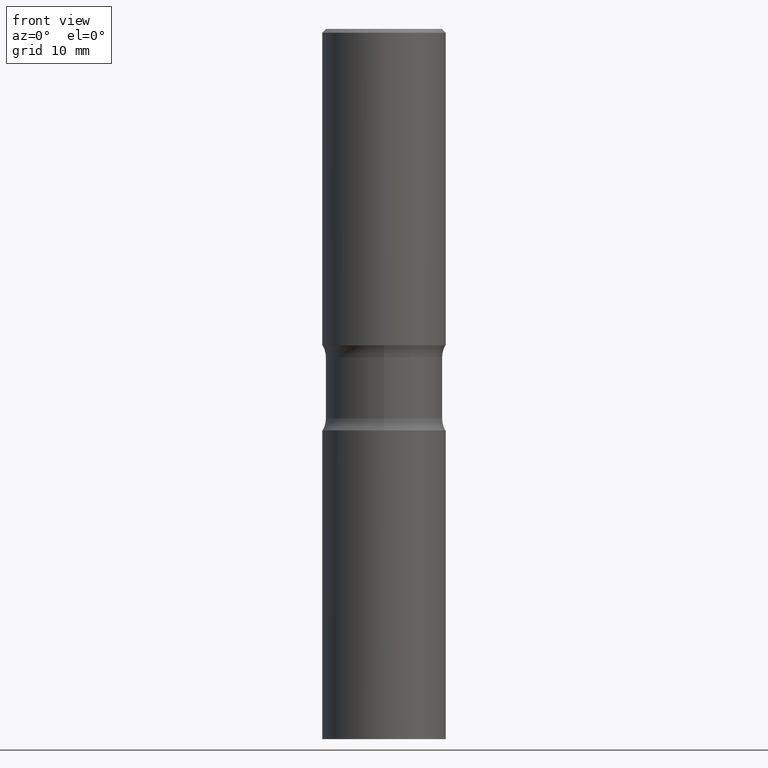
[diagram: clean part render]
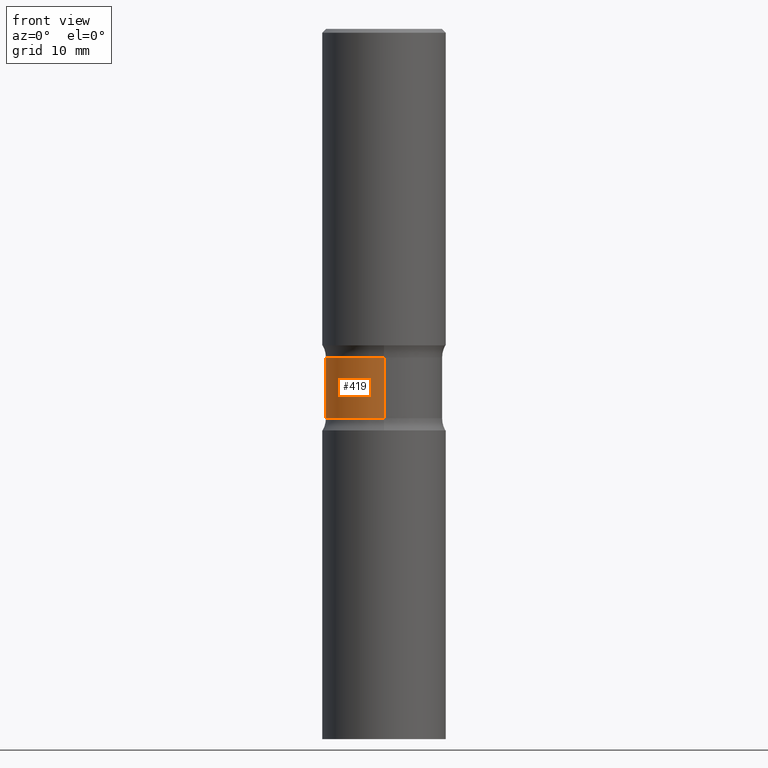
[diagram: same view with one face highlighted and labeled with its STEP entity id]
A machine part, front view. The second image highlights one B-rep face of the part: STEP entity #419.
In plain terms, the highlighted cylindrical surface (partial cylindrical patch) has radius 7.5819 mm, axis along (0, -0, -1).
Its self-contained STEP definition (entity closure, byte-faithful):
#11 = CARTESIAN_POINT ( 'NONE',  ( 4.111182931094906957E-29, -5.834292197691040405E-15, -1.676083042035705573 ) ) ;
#12 = VERTEX_POINT ( 'NONE', #458 ) ;
#32 = DIRECTION ( 'NONE',  ( 2.412125853363540713E-29, -3.539230345046689582E-15, -1.000000000000000000 ) ) ;
#43 = ORIENTED_EDGE ( 'NONE', *, *, #475, .F. ) ;
#54 = VERTEX_POINT ( 'NONE', #414 ) ;
#72 = VECTOR ( 'NONE', #324, 39.37007874015748143 ) ;
#88 = CARTESIAN_POINT ( 'NONE',  ( 8.804979533899115316E-29, -1.272134054425921312E-14, -3.621999999999999886 ) ) ;
#89 = LINE ( 'NONE', #416, #420 ) ;
#120 = CIRCLE ( 'NONE', #349, 0.2985000000000000431 ) ;
#164 = DIRECTION ( 'NONE',  ( 2.412125853363540713E-29, -3.539230345046689582E-15, -1.000000000000000000 ) ) ;
#188 = EDGE_CURVE ( 'NONE', #12, #54, #235, .T. ) ;
#194 = EDGE_CURVE ( 'NONE', #12, #240, #480, .T. ) ;
#210 = VERTEX_POINT ( 'NONE', #327 ) ;
#216 = CARTESIAN_POINT ( 'NONE',  ( 2.084414359289390829E-15, 0.2984999999999941034, -1.676083042035706683 ) ) ;
#231 = EDGE_CURVE ( 'NONE', #240, #210, #89, .T. ) ;
#235 = LINE ( 'NONE', #488, #72 ) ;
#240 = VERTEX_POINT ( 'NONE', #216 ) ;
#245 = DIRECTION ( 'NONE',  ( 6.982962677686265922E-15, 1.000000000000000000, -3.660767830705880744E-15 ) ) ;
#267 = DIRECTION ( 'NONE',  ( 6.982962677686265922E-15, 1.000000000000000000, -3.660767830705879955E-15 ) ) ;
#275 = ORIENTED_EDGE ( 'NONE', *, *, #194, .T. ) ;
#283 = EDGE_LOOP ( 'NONE', ( #478, #275, #350, #43 ) ) ;
#324 = DIRECTION ( 'NONE',  ( 2.412125853363540713E-29, -3.539230345046689582E-15, -1.000000000000000000 ) ) ;
#327 = CARTESIAN_POINT ( 'NONE',  ( 2.084414359289399112E-15, 0.2984999999999931042, -1.985216957964295981 ) ) ;
#346 = CARTESIAN_POINT ( 'NONE',  ( 4.856852841857767702E-29, -6.928388333628615864E-15, -1.985216957964294870 ) ) ;
#349 = AXIS2_PLACEMENT_3D ( 'NONE', #346, #32, #267 ) ;
#350 = ORIENTED_EDGE ( 'NONE', *, *, #231, .T. ) ;
#382 = DIRECTION ( 'NONE',  ( 2.412125853363540713E-29, -3.539230345046689582E-15, -1.000000000000000000 ) ) ;
#386 = AXIS2_PLACEMENT_3D ( 'NONE', #88, #447, #245 ) ;
#397 = AXIS2_PLACEMENT_3D ( 'NONE', #11, #164, #454 ) ;
#401 = FACE_OUTER_BOUND ( 'NONE', #283, .T. ) ;
#412 = CYLINDRICAL_SURFACE ( 'NONE', #386, 0.2984999999999999876 ) ;
#414 = CARTESIAN_POINT ( 'NONE',  ( -2.104286248366424083E-15, -0.2985000000000069820, -1.985216957964293760 ) ) ;
#416 = CARTESIAN_POINT ( 'NONE',  ( 2.084414359289438161E-15, 0.2984999999999872200, -3.622000000000000774 ) ) ;
#419 = ADVANCED_FACE ( 'NONE', ( #401 ), #412, .T. ) ;
#420 = VECTOR ( 'NONE', #382, 39.37007874015748143 ) ;
#447 = DIRECTION ( 'NONE',  ( 2.412125853363540713E-29, -3.539230345046689582E-15, -1.000000000000000000 ) ) ;
#454 = DIRECTION ( 'NONE',  ( 6.982962677686265922E-15, 1.000000000000000000, -3.660767830705881533E-15 ) ) ;
#458 = CARTESIAN_POINT ( 'NONE',  ( -2.104286248366432366E-15, -0.2985000000000057607, -1.676083042035704462 ) ) ;
#475 = EDGE_CURVE ( 'NONE', #54, #210, #120, .T. ) ;
#478 = ORIENTED_EDGE ( 'NONE', *, *, #188, .F. ) ;
#480 = CIRCLE ( 'NONE', #397, 0.2984999999999999321 ) ;
#488 = CARTESIAN_POINT ( 'NONE',  ( -2.047858652334713876E-15, -0.2985000000000126996, -3.621999999999998554 ) ) ;